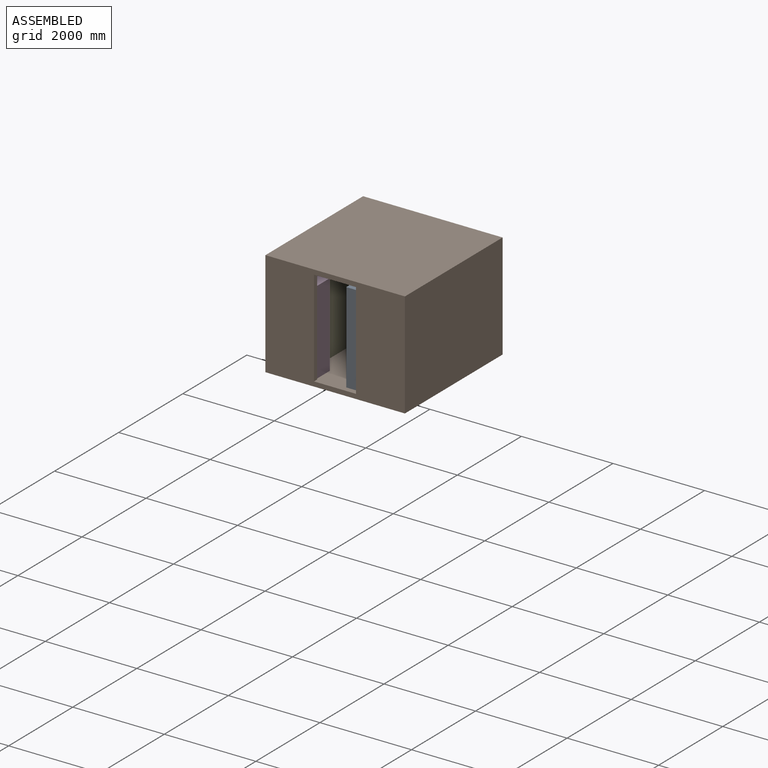
[diagram: assembled view]
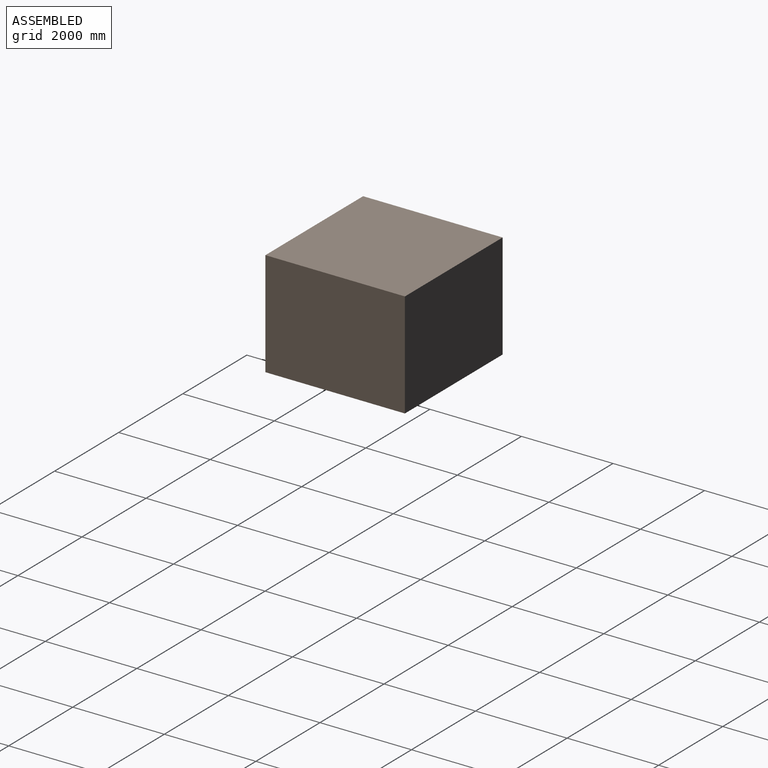
[diagram: assembled view, second angle]
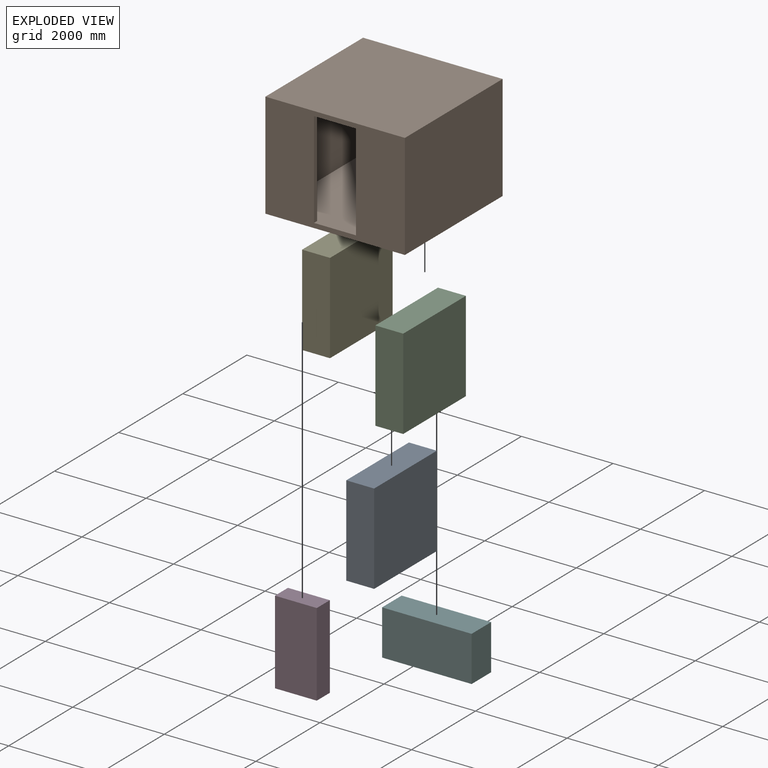
[diagram: exploded view]
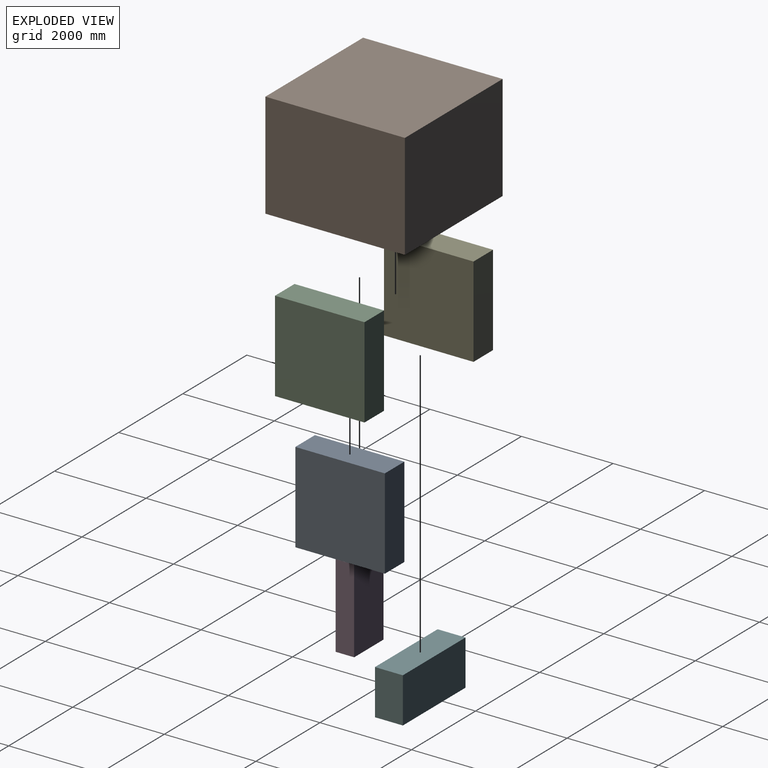
[diagram: exploded view, second angle]
ASSEMBLY  parts=6 mates=5
PART A: 6 faces, bbox 609.6x1955.8x1981.2 mm
  f0: plane 1981.2x609.6mm, normal (0,1,0), area 1207739.5mm2, adj f1,f3,f4,f5
  f1: plane 1981.2x1955.8mm, normal (-1,0,0), area 3874831mm2, adj f0,f2,f4,f5
  f2: plane 1981.2x609.6mm, normal (0,-1,0), area 1207739.5mm2, adj f1,f3,f4,f5
  f3: plane 1981.2x1955.8mm, normal (1,0,0), area 3874831mm2, adj f0,f2,f4,f5
  f4: plane 1955.8x609.6mm, normal (0,0,1), area 1192255.7mm2, adj f0,f1,f2,f3
  f5: plane 1955.8x609.6mm, normal (0,0,-1), area 1192255.7mm2, adj f0,f1,f2,f3
PART B: 26 faces, bbox 3048x3048x2311.4 mm
  f0: plane 389.13x304.8mm, normal (1,0,0), area 117721.6mm2, adj f1,f16,f18,f19,f21
  f1: plane 2950.46x2852.93mm, normal (0,0,-1), area 7844192.8mm2, adj f0,f2,f3,f4,f5,f6,f8,f9
  f2: plane 2108.2x963.17mm, normal (0,1,0), area 2030550.8mm2, adj f1,f3,f7,f8
  f3: plane 2852.93x2108.2mm, normal (1,0,0), area 6014542.8mm2, adj f1,f2,f4,f7
  f4: plane 2852.93x2108.2mm, normal (0,-1,0), area 5230655.9mm2, adj f1,f3,f5,f7,f22,f23,f24
  f5: plane 2852.93x2108.2mm, normal (-1,0,0), area 6012516mm2, adj f1,f4,f6,f7,f21
  f6: plane 2108.2x972.31mm, normal (0,1,0), area 2049828.2mm2, adj f1,f5,f7,f9
  f7: plane 2950.46x2852.93mm, normal (0,0,1), area 8228682.4mm2, adj f2,f3,f4,f5,f6,f8,f9,f11
  f8: plane 2108.2x97.54mm, normal (1,0,0), area 205625.4mm2, adj f1,f2,f7,f11
  f9: plane 2108.2x97.54mm, normal (-1,0,0), area 205625.4mm2, adj f1,f6,f7,f11
  f10: plane 3048x2311.4mm, normal (-1,0,0), area 7045147.2mm2, adj f11,f13,f14,f15
  f11: plane 3048x2311.4mm, normal (0,-1,0), area 5110983.3mm2, adj f1,f7,f8,f9,f10,f12,f14,f15
  f12: plane 3048x2311.4mm, normal (1,0,0), area 7045147.2mm2, adj f11,f13,f14,f15
  f13: plane 3048x2311.4mm, normal (0,1,0), area 7045147.2mm2, adj f10,f12,f14,f15
  f14: plane 3048x3048mm, normal (0,0,1), area 9290304mm2, adj f10,f11,f12,f13
  f15: plane 3048x3048mm, normal (0,0,-1), area 9290304mm2, adj f10,f11,f12,f13
  f16: plane 1155.7x304.8mm, normal (0,0,-1), area 352257.4mm2, adj f0,f17,f18,f19
  f17: plane 389.13x304.8mm, normal (-1,0,0), area 118606.2mm2, adj f1,f16,f18,f19
  f18: plane 1155.7x389.13mm, normal (0,1,0), area 449715.2mm2, adj f0,f1,f16,f17,f20
  f19: plane 1155.7x389.13mm, normal (0,-1,0), area 449715.2mm2, adj f0,f1,f16,f17
  f20: plane 50.8x27.94mm, normal (-1,0,0), area 1142.2mm2, adj f18,f21
  f21: cylinder r=25.4mm len=829.06mm, axis (1,0,0), area 132311.5mm2, adj f0,f5,f20
  f22: plane 617.73x25.4mm, normal (-1,0,0), area 15690.3mm2, adj f1,f4,f23,f25
  f23: plane 1268.98x25.4mm, normal (0,0,-1), area 32232.2mm2, adj f4,f22,f24,f25
  f24: plane 617.73x25.4mm, normal (1,0,0), area 15690.3mm2, adj f1,f4,f23,f25
  f25: plane 1268.98x617.73mm, normal (0,-1,0), area 783886.9mm2, adj f1,f22,f23,f24
PART C: same geometry as A
PART D: 6 faces, bbox 914.4x406.4x1828.8 mm
  f0: plane 1828.8x914.4mm, normal (0,1,0), area 1672254.7mm2, adj f1,f3,f4,f5
  f1: plane 1828.8x406.4mm, normal (-1,0,0), area 743224.3mm2, adj f0,f2,f4,f5
  f2: plane 1828.8x914.4mm, normal (0,-1,0), area 1672254.7mm2, adj f1,f3,f4,f5
  f3: plane 1828.8x406.4mm, normal (1,0,0), area 743224.3mm2, adj f0,f2,f4,f5
  f4: plane 914.4x406.4mm, normal (0,0,1), area 371612.2mm2, adj f0,f1,f2,f3
  f5: plane 914.4x406.4mm, normal (0,0,-1), area 371612.2mm2, adj f0,f1,f2,f3
PART E: same geometry as A
PART F: 6 faces, bbox 1955.8x609.6x990.6 mm
  f0: plane 990.6x609.6mm, normal (1,0,0), area 603869.8mm2, adj f1,f3,f4,f5
  f1: plane 1955.8x990.6mm, normal (0,1,0), area 1937415.5mm2, adj f0,f2,f4,f5
  f2: plane 990.6x609.6mm, normal (-1,0,0), area 603869.8mm2, adj f1,f3,f4,f5
  f3: plane 1955.8x990.6mm, normal (0,-1,0), area 1937415.5mm2, adj f0,f2,f4,f5
  f4: plane 1955.8x609.6mm, normal (0,0,1), area 1192255.7mm2, adj f0,f1,f2,f3
  f5: plane 1955.8x609.6mm, normal (0,0,-1), area 1192255.7mm2, adj f0,f1,f2,f3
PLACE A t=(1532.13,-820.93,0)mm
PLACE B at identity fixed
PLACE C t=(2167.13,-820.93,0)mm
PLACE D t=(-201.85,-312.65,0)mm
PLACE E t=(-25.4,25.4,0)mm
PLACE F t=(31.47,38.86,0)mm
MATE planar F.f5 <-> B.f7  axis (0,0,-1) through (399.6,1071.47,101.6)mm
MATE fastened C.f5 <-> A.f5  axis (0,0,-1) through (791.46,-1401.06,101.6)mm
MATE planar D.f5 <-> B.f7  axis (0,0,-1) through (-945.29,-1196.74,101.6)mm
MATE fastened C.f5 <-> B.f7  axis (0,0,-1) through (1401.06,-1401.06,101.6)mm
MATE fastened B.f7 <-> E.f5  axis (0,0,1) through (-1401.06,1401.06,101.6)mm
